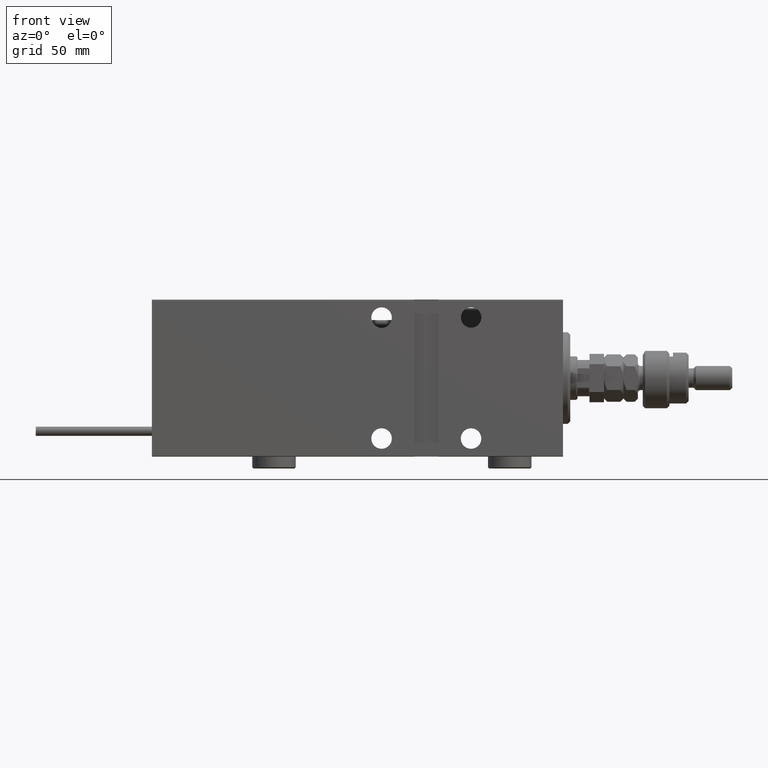
[diagram: clean part render]
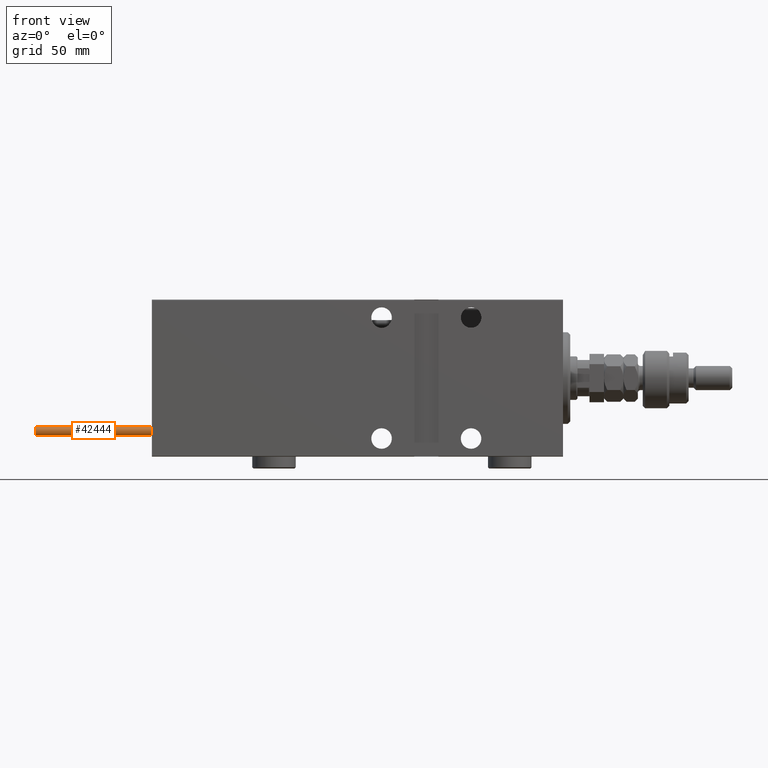
[diagram: same view with one face highlighted and labeled with its STEP entity id]
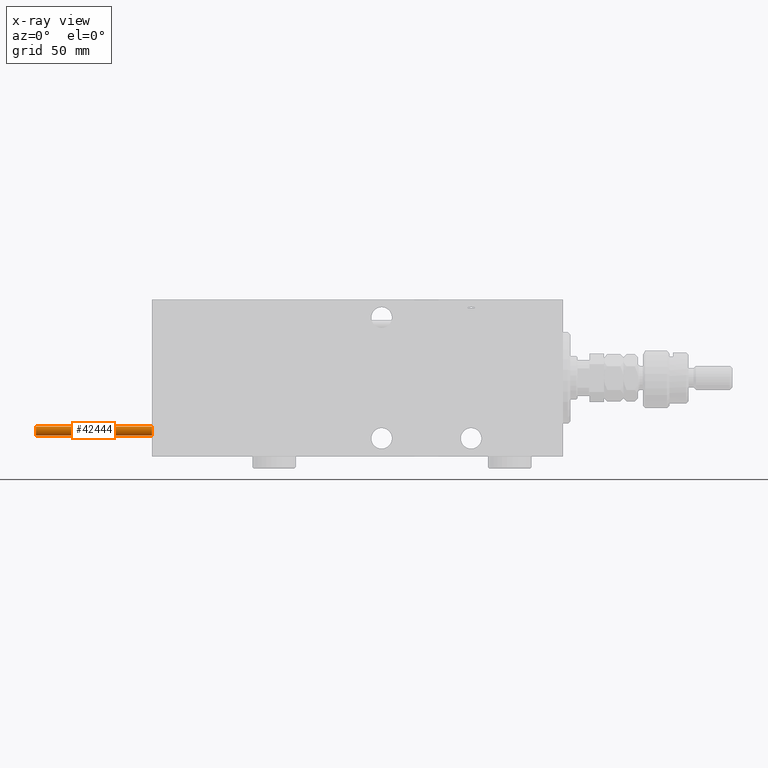
[diagram: x-ray of the same camera — body ghosted, the highlighted face saturated]
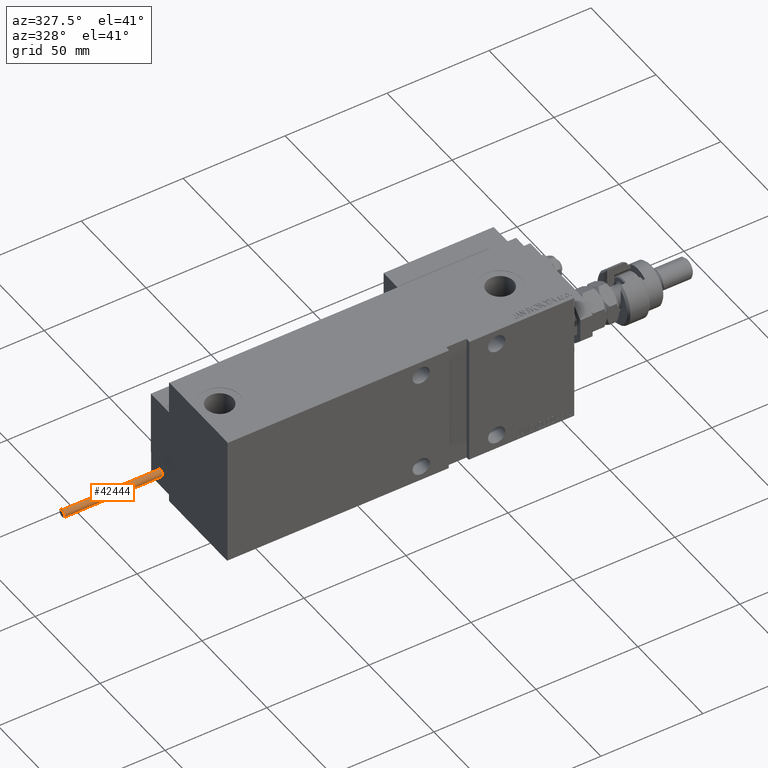
[diagram: same view with one face highlighted and labeled with its STEP entity id]
A machine part, front view. The second image highlights one B-rep face of the part: STEP entity #42444.
The next image is the same camera in x-ray: the body ghosted, the highlighted face saturated — about 0% of this face is hidden behind the body in this view.
A second angle (auxiliary view) of the same face is appended — the face is thin or edge-on in the first view.
In plain terms, the highlighted cylindrical surface (edge-blend (fillet) strip) has radius 1.9 mm, axis along (1, -0, 0).
Its self-contained STEP definition (entity closure, byte-faithful):
#86 = CIRCLE ( 'NONE', #6127, 1.899999999999999467 ) ;
#1796 = DIRECTION ( 'NONE',  ( -0.000000000000000000, -0.000000000000000000, -1.000000000000000000 ) ) ;
#6127 = AXIS2_PLACEMENT_3D ( 'NONE', #49385, #46087, #33605 ) ;
#6817 = CARTESIAN_POINT ( 'NONE',  ( -1.899999999999999467, 0.000000000000000000, 48.00000000000000000 ) ) ;
#8247 = LINE ( 'NONE', #24298, #25239 ) ;
#9205 = DIRECTION ( 'NONE',  ( 1.000000000000000000, 0.000000000000000000, 0.000000000000000000 ) ) ;
#12003 = CIRCLE ( 'NONE', #43257, 1.899999999999999467 ) ;
#13262 = CARTESIAN_POINT ( 'NONE',  ( 0.000000000000000000, 0.000000000000000000, 48.00000000000000000 ) ) ;
#16919 = ORIENTED_EDGE ( 'NONE', *, *, #47501, .T. ) ;
#18642 = ORIENTED_EDGE ( 'NONE', *, *, #42194, .T. ) ;
#20086 = CARTESIAN_POINT ( 'NONE',  ( -1.899999999999999467, 0.000000000000000000, 0.000000000000000000 ) ) ;
#21772 = AXIS2_PLACEMENT_3D ( 'NONE', #28571, #48933, #32101 ) ;
#22168 = CARTESIAN_POINT ( 'NONE',  ( 1.899999999999999467, 2.326828918379970872E-16, 48.00000000000000000 ) ) ;
#22934 = EDGE_CURVE ( 'NONE', #33017, #30221, #43874, .T. ) ;
#24298 = CARTESIAN_POINT ( 'NONE',  ( -1.899999999999999467, 0.000000000000000000, 48.00000000000000000 ) ) ;
#25239 = VECTOR ( 'NONE', #49280, 1000.000000000000000 ) ;
#25973 = CARTESIAN_POINT ( 'NONE',  ( 1.899999999999999467, 2.326828918379970872E-16, 48.00000000000000000 ) ) ;
#28571 = CARTESIAN_POINT ( 'NONE',  ( 0.000000000000000000, 0.000000000000000000, 48.00000000000000000 ) ) ;
#29854 = DIRECTION ( 'NONE',  ( 0.000000000000000000, 0.000000000000000000, 1.000000000000000000 ) ) ;
#30221 = VERTEX_POINT ( 'NONE', #37692 ) ;
#30469 = ORIENTED_EDGE ( 'NONE', *, *, #22934, .F. ) ;
#32101 = DIRECTION ( 'NONE',  ( -1.000000000000000000, 0.000000000000000000, 0.000000000000000000 ) ) ;
#33017 = VERTEX_POINT ( 'NONE', #25973 ) ;
#33605 = DIRECTION ( 'NONE',  ( 1.000000000000000000, 0.000000000000000000, 0.000000000000000000 ) ) ;
#33636 = ORIENTED_EDGE ( 'NONE', *, *, #33976, .F. ) ;
#33976 = EDGE_CURVE ( 'NONE', #35611, #33017, #12003, .T. ) ;
#35611 = VERTEX_POINT ( 'NONE', #6817 ) ;
#35646 = VERTEX_POINT ( 'NONE', #20086 ) ;
#37241 = FACE_OUTER_BOUND ( 'NONE', #49607, .T. ) ;
#37692 = CARTESIAN_POINT ( 'NONE',  ( 1.899999999999999467, 2.326828918379970872E-16, 0.000000000000000000 ) ) ;
#42194 = EDGE_CURVE ( 'NONE', #35611, #35646, #8247, .T. ) ;
#42444 = ADVANCED_FACE ( 'NONE', ( #37241 ), #48665, .T. ) ;
#43257 = AXIS2_PLACEMENT_3D ( 'NONE', #13262, #29854, #9205 ) ;
#43874 = LINE ( 'NONE', #22168, #47291 ) ;
#46087 = DIRECTION ( 'NONE',  ( 0.000000000000000000, 0.000000000000000000, 1.000000000000000000 ) ) ;
#47291 = VECTOR ( 'NONE', #1796, 1000.000000000000000 ) ;
#47501 = EDGE_CURVE ( 'NONE', #35646, #30221, #86, .T. ) ;
#48665 = CYLINDRICAL_SURFACE ( 'NONE', #21772, 1.899999999999999467 ) ;
#48933 = DIRECTION ( 'NONE',  ( -0.000000000000000000, -0.000000000000000000, -1.000000000000000000 ) ) ;
#49280 = DIRECTION ( 'NONE',  ( -0.000000000000000000, -0.000000000000000000, -1.000000000000000000 ) ) ;
#49385 = CARTESIAN_POINT ( 'NONE',  ( 0.000000000000000000, 0.000000000000000000, 0.000000000000000000 ) ) ;
#49607 = EDGE_LOOP ( 'NONE', ( #30469, #33636, #18642, #16919 ) ) ;